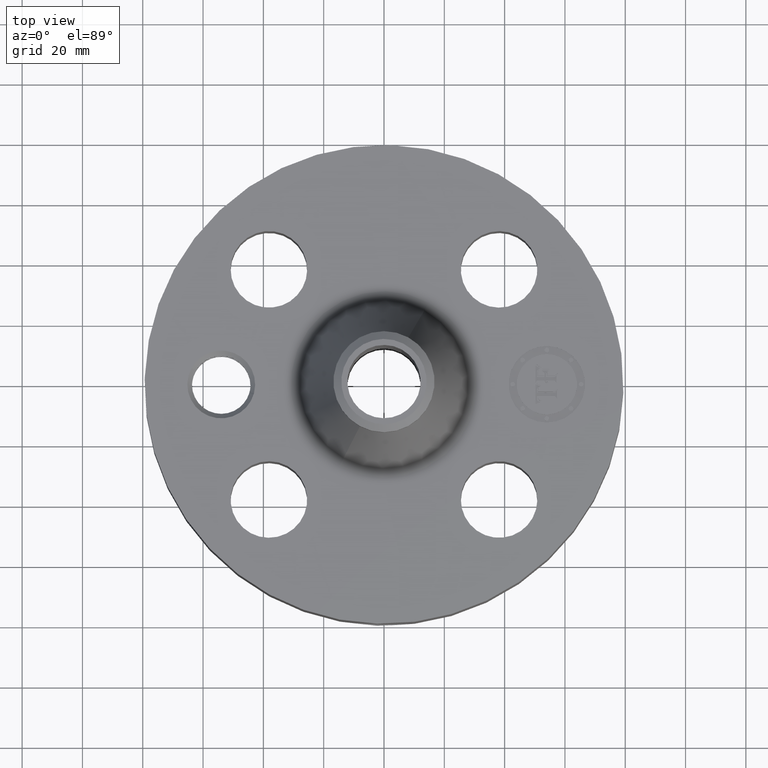
[diagram: clean part render]
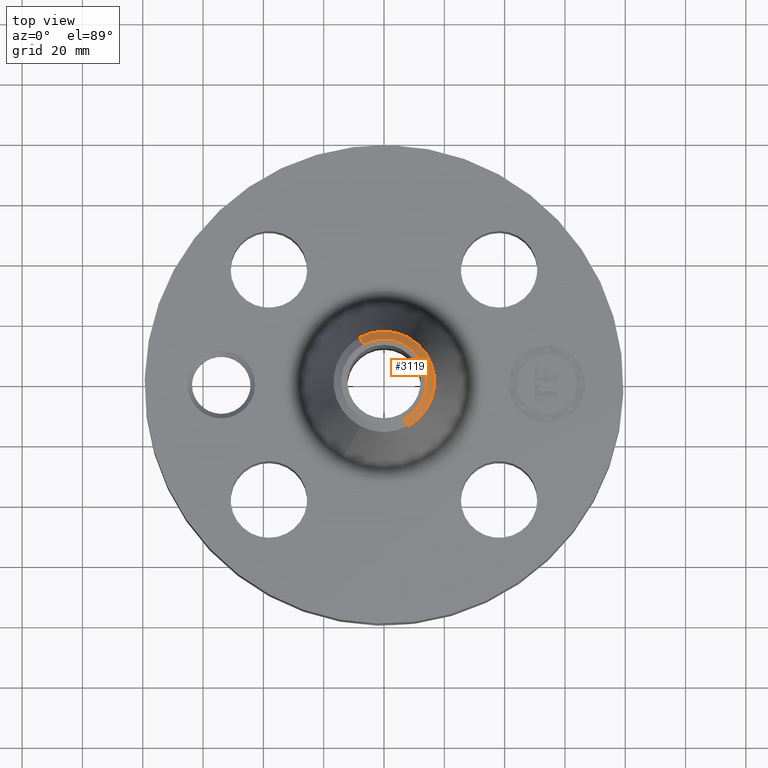
[diagram: same view with one face highlighted and labeled with its STEP entity id]
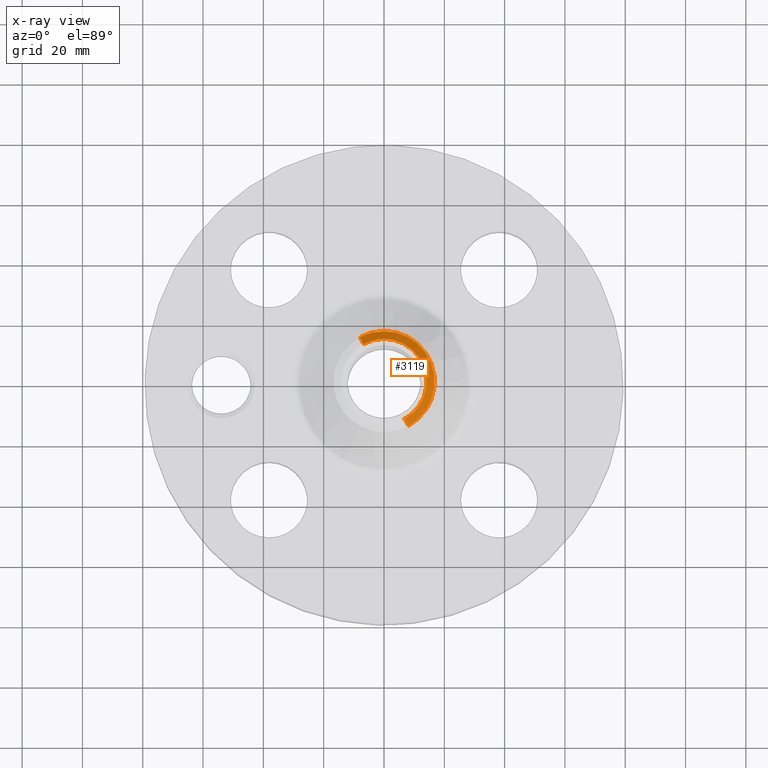
[diagram: x-ray of the same camera — body ghosted, the highlighted face saturated]
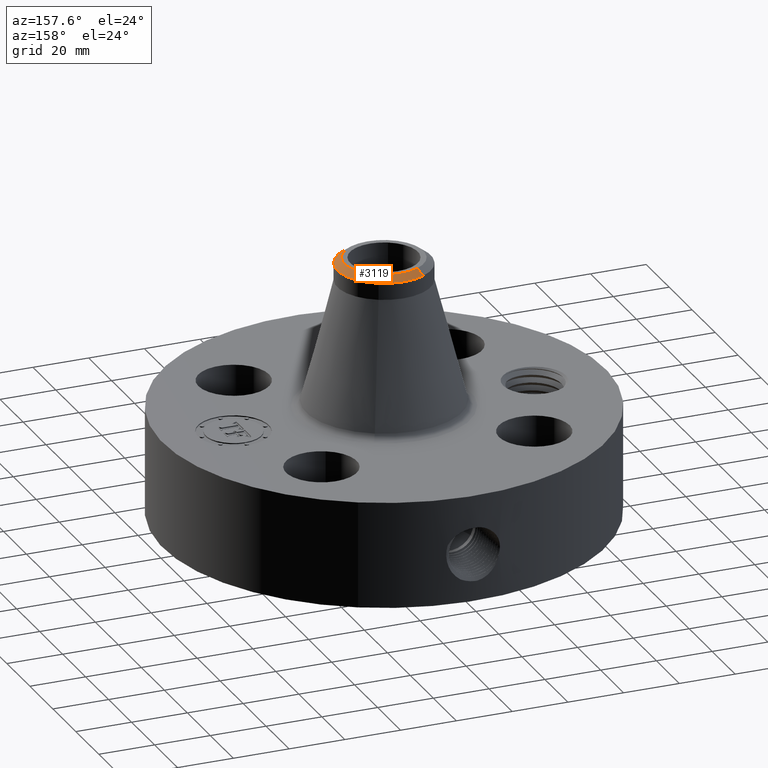
[diagram: same view with one face highlighted and labeled with its STEP entity id]
A machine part, top view. The second image highlights one B-rep face of the part: STEP entity #3119.
The next image is the same camera in x-ray: the body ghosted, the highlighted face saturated — about 0% of this face is hidden behind the body in this view.
A second angle (auxiliary view) of the same face is appended — the face is thin or edge-on in the first view.
In plain terms, the highlighted conical surface has half-angle 52.5 deg.
Its self-contained STEP definition (entity closure, byte-faithful):
#2277=AXIS2_PLACEMENT_3D('Circle Axis2P3D',#2275,#2276,$) ;
#3064=AXIS2_PLACEMENT_3D('Cone Axis2P3D',#3061,#3062,#3063) ;
#3102=AXIS2_PLACEMENT_3D('Circle Axis2P3D',#3100,#3101,$) ;
#3109=AXIS2_PLACEMENT_3D('Circle Axis2P3D',#3107,#3108,$) ;
#2275=CARTESIAN_POINT('Axis2P3D Location',(0.,0.,3.87000000002)) ;
#2279=CARTESIAN_POINT('Vertex',(0.267155162633,-0.489024244991,3.87000000002)) ;
#2281=CARTESIAN_POINT('Vertex',(-0.267155162633,0.489024244991,3.87000000002)) ;
#3061=CARTESIAN_POINT('Axis2P3D Location',(0.,0.,3.87000000002)) ;
#3066=CARTESIAN_POINT('Line Origine',(0.291788009056,-0.534114367921,3.83057479979)) ;
#3070=CARTESIAN_POINT('Vertex',(0.31642085548,-0.57920449085,3.79114959957)) ;
#3073=CARTESIAN_POINT('Line Origine',(-0.291788009056,0.534114367921,3.83057479979)) ;
#3077=CARTESIAN_POINT('Vertex',(-0.31642085548,0.57920449085,3.79114959957)) ;
#3100=CARTESIAN_POINT('Axis2P3D Location',(0.,0.,3.79114959957)) ;
#3104=CARTESIAN_POINT('Vertex',(0.31642085548,0.57920449085,3.79114959957)) ;
#3107=CARTESIAN_POINT('Axis2P3D Location',(0.,0.,3.79114959957)) ;
#2276=DIRECTION('Axis2P3D Direction',(0.,0.,-0.0393700787402)) ;
#3062=DIRECTION('Axis2P3D Direction',(-0.,-0.,-0.0393700787402)) ;
#3063=DIRECTION('Axis2P3D XDirection',(-0.0188750212049,0.0345504945626,0.)) ;
#3067=DIRECTION('Vector Direction',(0.014974561121,-0.02741075027,-0.023966985394)) ;
#3074=DIRECTION('Vector Direction',(-0.014974561121,0.02741075027,-0.023966985394)) ;
#3101=DIRECTION('Axis2P3D Direction',(0.,0.,-0.0393700787402)) ;
#3108=DIRECTION('Axis2P3D Direction',(0.,0.,-0.0393700787402)) ;
#3068=VECTOR('Line Direction',#3067,0.0393700787402) ;
#3075=VECTOR('Line Direction',#3074,0.0393700787402) ;
#3113=ORIENTED_EDGE('',*,*,#3079,.F.) ;
#3114=ORIENTED_EDGE('',*,*,#2283,.F.) ;
#3115=ORIENTED_EDGE('',*,*,#3072,.T.) ;
#3116=ORIENTED_EDGE('',*,*,#3106,.T.) ;
#3117=ORIENTED_EDGE('',*,*,#3111,.F.) ;
#3119=ADVANCED_FACE('PartBody',(#3118),#3065,.T.) ;
#2278=CIRCLE('generated circle',#2277,0.557240157482) ;
#3103=CIRCLE('generated circle',#3102,0.660000000003) ;
#3110=CIRCLE('generated circle',#3109,0.660000000003) ;
#3065=CONICAL_SURFACE('Cone',#3064,0.557240157482,0.916297857297) ;
#2283=EDGE_CURVE('',#2280,#2282,#2278,.F.) ;
#3072=EDGE_CURVE('',#2280,#3071,#3069,.T.) ;
#3079=EDGE_CURVE('',#2282,#3078,#3076,.T.) ;
#3106=EDGE_CURVE('',#3071,#3105,#3103,.F.) ;
#3111=EDGE_CURVE('',#3078,#3105,#3110,.T.) ;
#3112=EDGE_LOOP('',(#3113,#3114,#3115,#3116,#3117)) ;
#3118=FACE_OUTER_BOUND('',#3112,.T.) ;
#3069=LINE('Line',#3066,#3068) ;
#3076=LINE('Line',#3073,#3075) ;
#2280=VERTEX_POINT('',#2279) ;
#2282=VERTEX_POINT('',#2281) ;
#3071=VERTEX_POINT('',#3070) ;
#3078=VERTEX_POINT('',#3077) ;
#3105=VERTEX_POINT('',#3104) ;